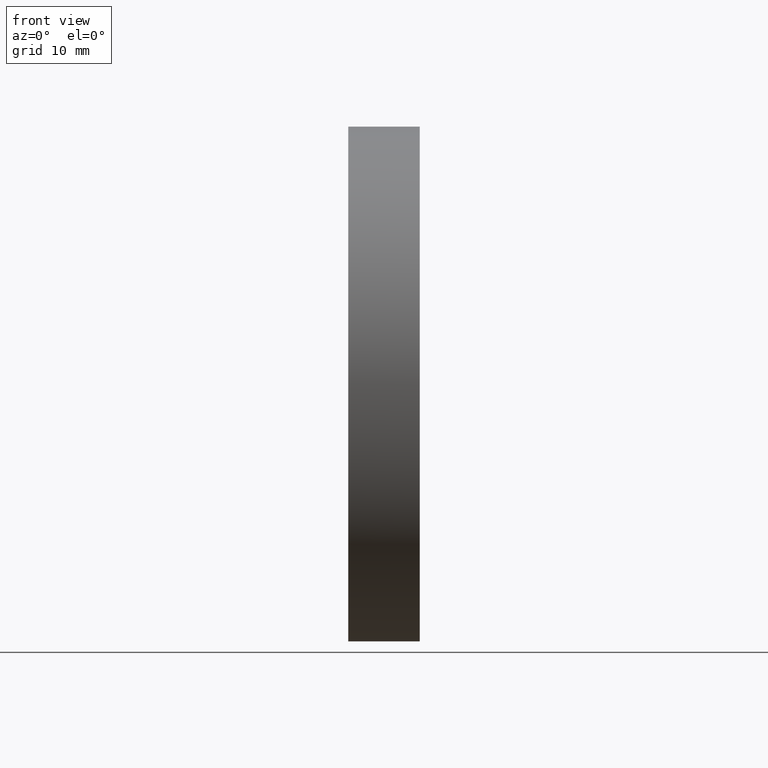
[diagram: clean part render]
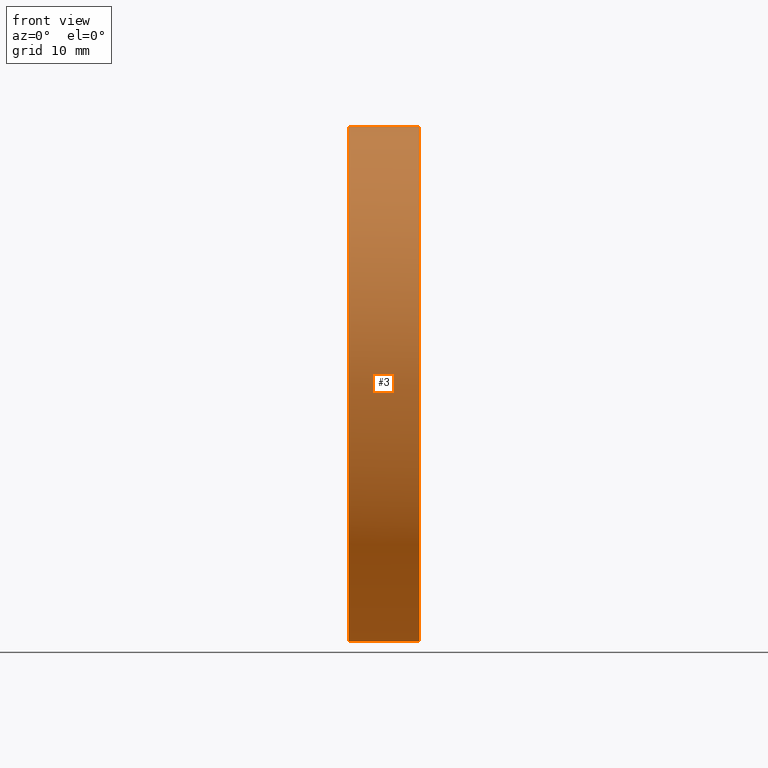
[diagram: same view with one face highlighted and labeled with its STEP entity id]
A machine part, front view. The second image highlights one B-rep face of the part: STEP entity #3.
In plain terms, the highlighted cylindrical surface (partial cylindrical patch) has radius 37.5 mm, axis along (-1, -0, -0).
Its self-contained STEP definition (entity closure, byte-faithful):
#3 = ADVANCED_FACE ( 'NONE', ( #16 ), #159, .T. ) ;
#4 = CARTESIAN_POINT ( 'NONE',  ( 240.6078455750809400, 138.7560422467448700, 0.0000000000000000000 ) ) ;
#7 = CARTESIAN_POINT ( 'NONE',  ( 240.6078455750809400, 138.7560422467448700, 0.0000000000000000000 ) ) ;
#11 = VECTOR ( 'NONE', #85, 1000.000000000000000 ) ;
#13 = CARTESIAN_POINT ( 'NONE',  ( 230.1996119052661200, 138.7560422467448700, -37.50000000000000700 ) ) ;
#15 = CARTESIAN_POINT ( 'NONE',  ( 217.9702860043302100, 138.7560422467448700, 0.0000000000000000000 ) ) ;
#16 = FACE_OUTER_BOUND ( 'NONE', #29, .T. ) ;
#20 = EDGE_CURVE ( 'NONE', #171, #34, #143, .T. ) ;
#22 = DIRECTION ( 'NONE',  ( 0.0000000000000000000, 0.0000000000000000000, 1.000000000000000000 ) ) ;
#29 = EDGE_LOOP ( 'NONE', ( #114, #172, #50, #30, #145 ) ) ;
#30 = ORIENTED_EDGE ( 'NONE', *, *, #140, .T. ) ;
#34 = VERTEX_POINT ( 'NONE', #175 ) ;
#36 = EDGE_CURVE ( 'NONE', #127, #68, #186, .T. ) ;
#44 = CARTESIAN_POINT ( 'NONE',  ( 230.1996119052661200, 138.7560422467448700, 0.0000000000000000000 ) ) ;
#45 = DIRECTION ( 'NONE',  ( -1.000000000000000000, -0.0000000000000000000, -0.0000000000000000000 ) ) ;
#47 = CARTESIAN_POINT ( 'NONE',  ( 230.1996119052661200, 138.7560422467448700, 37.50000000000000700 ) ) ;
#49 = AXIS2_PLACEMENT_3D ( 'NONE', #7, #177, #22 ) ;
#50 = ORIENTED_EDGE ( 'NONE', *, *, #71, .T. ) ;
#59 = EDGE_CURVE ( 'NONE', #171, #127, #102, .T. ) ;
#68 = VERTEX_POINT ( 'NONE', #47 ) ;
#71 = EDGE_CURVE ( 'NONE', #34, #178, #118, .T. ) ;
#72 = CARTESIAN_POINT ( 'NONE',  ( 217.9702860043302100, 138.7560422467448700, -37.50000000000000700 ) ) ;
#73 = VECTOR ( 'NONE', #181, 1000.000000000000000 ) ;
#85 = DIRECTION ( 'NONE',  ( -1.000000000000000000, -0.0000000000000000000, -0.0000000000000000000 ) ) ;
#88 = DIRECTION ( 'NONE',  ( 0.0000000000000000000, 0.0000000000000000000, 1.000000000000000000 ) ) ;
#90 = AXIS2_PLACEMENT_3D ( 'NONE', #4, #162, #88 ) ;
#95 = AXIS2_PLACEMENT_3D ( 'NONE', #15, #176, #164 ) ;
#102 = LINE ( 'NONE', #72, #11 ) ;
#105 = AXIS2_PLACEMENT_3D ( 'NONE', #44, #45, #161 ) ;
#113 = CARTESIAN_POINT ( 'NONE',  ( 240.6078455750809400, 138.7560422467448700, 37.50000000000000700 ) ) ;
#114 = ORIENTED_EDGE ( 'NONE', *, *, #59, .F. ) ;
#118 = CIRCLE ( 'NONE', #49, 37.50000000000000700 ) ;
#126 = LINE ( 'NONE', #184, #73 ) ;
#127 = VERTEX_POINT ( 'NONE', #13 ) ;
#140 = EDGE_CURVE ( 'NONE', #178, #68, #126, .T. ) ;
#143 = CIRCLE ( 'NONE', #90, 37.50000000000000700 ) ;
#144 = CARTESIAN_POINT ( 'NONE',  ( 240.6078455750809400, 138.7560422467448700, -37.50000000000000700 ) ) ;
#145 = ORIENTED_EDGE ( 'NONE', *, *, #36, .F. ) ;
#159 = CYLINDRICAL_SURFACE ( 'NONE', #95, 37.50000000000000700 ) ;
#161 = DIRECTION ( 'NONE',  ( 0.0000000000000000000, 0.0000000000000000000, 1.000000000000000000 ) ) ;
#162 = DIRECTION ( 'NONE',  ( -1.000000000000000000, -0.0000000000000000000, -0.0000000000000000000 ) ) ;
#164 = DIRECTION ( 'NONE',  ( 0.0000000000000000000, 0.0000000000000000000, 1.000000000000000000 ) ) ;
#171 = VERTEX_POINT ( 'NONE', #144 ) ;
#172 = ORIENTED_EDGE ( 'NONE', *, *, #20, .T. ) ;
#175 = CARTESIAN_POINT ( 'NONE',  ( 240.6078455750809700, 101.2560422467449100, 0.0000000000000000000 ) ) ;
#176 = DIRECTION ( 'NONE',  ( -1.000000000000000000, -0.0000000000000000000, -0.0000000000000000000 ) ) ;
#177 = DIRECTION ( 'NONE',  ( -1.000000000000000000, -0.0000000000000000000, -0.0000000000000000000 ) ) ;
#178 = VERTEX_POINT ( 'NONE', #113 ) ;
#181 = DIRECTION ( 'NONE',  ( -1.000000000000000000, -0.0000000000000000000, -0.0000000000000000000 ) ) ;
#184 = CARTESIAN_POINT ( 'NONE',  ( 217.9702860043302100, 138.7560422467448700, 37.50000000000000700 ) ) ;
#186 = CIRCLE ( 'NONE', #105, 37.50000000000000700 ) ;